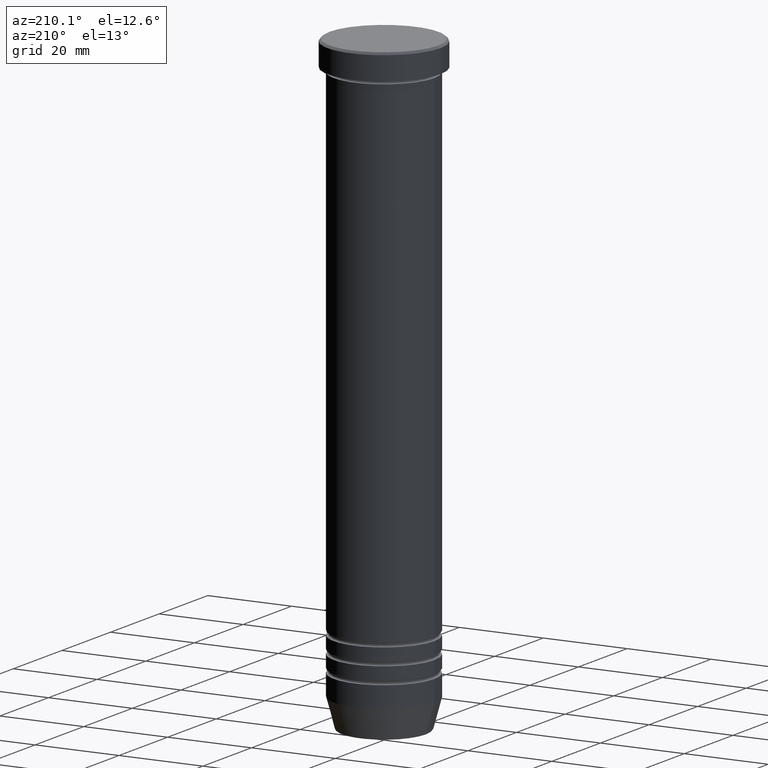
[diagram: clean part render]
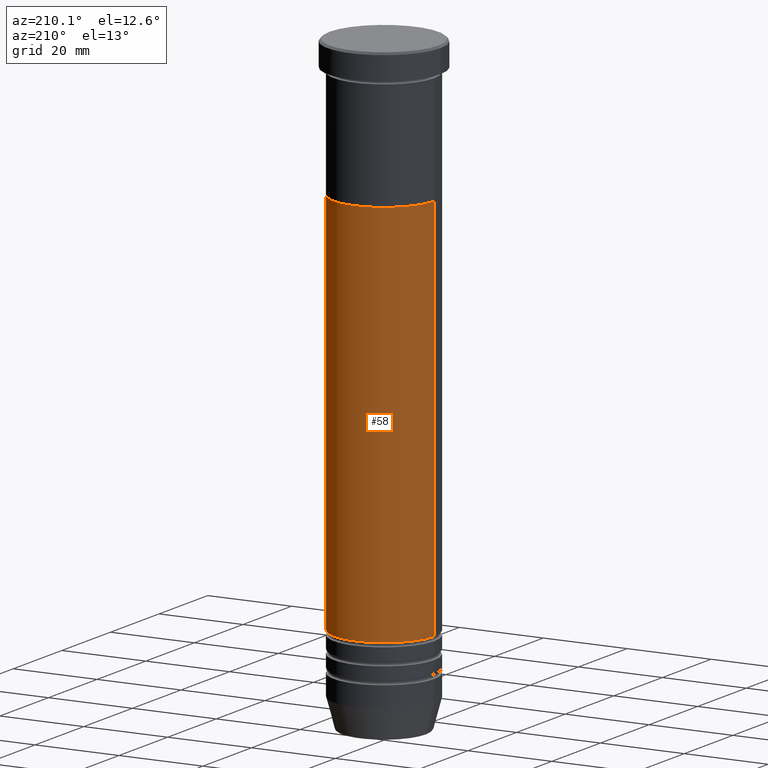
[diagram: same view with one face highlighted and labeled with its STEP entity id]
A machine part, auxiliary view. The second image highlights one B-rep face of the part: STEP entity #58.
In plain terms, the highlighted cylindrical surface (partial cylindrical patch) has radius 12 mm, axis along (-0, -0, 1).
Its self-contained STEP definition (entity closure, byte-faithful):
#5 = CARTESIAN_POINT ( 'NONE',  ( -11.99999999999999467, 1.469576158976823553E-15, -125.0000000000000284 ) ) ;
#57 = CARTESIAN_POINT ( 'NONE',  ( -12.00000000000000178, 1.469576158976824144E-15, -33.00000000000000000 ) ) ;
#58 = ADVANCED_FACE ( 'NONE', ( #116 ), #743, .T. ) ;
#61 = LINE ( 'NONE', #589, #150 ) ;
#97 = CIRCLE ( 'NONE', #752, 12.00000000000000178 ) ;
#116 = FACE_OUTER_BOUND ( 'NONE', #934, .T. ) ;
#150 = VECTOR ( 'NONE', #954, 1000.000000000000000 ) ;
#200 = CARTESIAN_POINT ( 'NONE',  ( 0.000000000000000000, 0.000000000000000000, 0.000000000000000000 ) ) ;
#206 = CIRCLE ( 'NONE', #478, 11.99999999999999467 ) ;
#235 = EDGE_CURVE ( 'NONE', #774, #382, #97, .T. ) ;
#294 = CARTESIAN_POINT ( 'NONE',  ( 0.000000000000000000, 0.000000000000000000, -125.0000000000000284 ) ) ;
#310 = EDGE_CURVE ( 'NONE', #629, #521, #206, .T. ) ;
#314 = DIRECTION ( 'NONE',  ( 1.000000000000000000, 0.000000000000000000, 0.000000000000000000 ) ) ;
#356 = CARTESIAN_POINT ( 'NONE',  ( 12.00000000000000178, 0.000000000000000000, -33.00000000000000000 ) ) ;
#382 = VERTEX_POINT ( 'NONE', #57 ) ;
#453 = EDGE_CURVE ( 'NONE', #521, #382, #61, .T. ) ;
#466 = ORIENTED_EDGE ( 'NONE', *, *, #453, .T. ) ;
#478 = AXIS2_PLACEMENT_3D ( 'NONE', #294, #1114, #927 ) ;
#521 = VERTEX_POINT ( 'NONE', #5 ) ;
#571 = CARTESIAN_POINT ( 'NONE',  ( 11.99999999999999822, 0.000000000000000000, 0.000000000000000000 ) ) ;
#582 = DIRECTION ( 'NONE',  ( -0.000000000000000000, -0.000000000000000000, 1.000000000000000000 ) ) ;
#589 = CARTESIAN_POINT ( 'NONE',  ( -11.99999999999999822, 1.469576158976823750E-15, 0.000000000000000000 ) ) ;
#629 = VERTEX_POINT ( 'NONE', #776 ) ;
#653 = ORIENTED_EDGE ( 'NONE', *, *, #1115, .F. ) ;
#743 = CYLINDRICAL_SURFACE ( 'NONE', #840, 11.99999999999999822 ) ;
#748 = DIRECTION ( 'NONE',  ( 1.000000000000000000, 0.000000000000000000, 0.000000000000000000 ) ) ;
#750 = ORIENTED_EDGE ( 'NONE', *, *, #310, .T. ) ;
#751 = DIRECTION ( 'NONE',  ( -0.000000000000000000, -0.000000000000000000, 1.000000000000000000 ) ) ;
#752 = AXIS2_PLACEMENT_3D ( 'NONE', #1136, #751, #314 ) ;
#774 = VERTEX_POINT ( 'NONE', #356 ) ;
#776 = CARTESIAN_POINT ( 'NONE',  ( 11.99999999999999467, 0.000000000000000000, -125.0000000000000284 ) ) ;
#803 = ORIENTED_EDGE ( 'NONE', *, *, #235, .F. ) ;
#840 = AXIS2_PLACEMENT_3D ( 'NONE', #200, #1082, #748 ) ;
#842 = LINE ( 'NONE', #571, #1043 ) ;
#927 = DIRECTION ( 'NONE',  ( 1.000000000000000000, 0.000000000000000000, 0.000000000000000000 ) ) ;
#934 = EDGE_LOOP ( 'NONE', ( #750, #466, #803, #653 ) ) ;
#954 = DIRECTION ( 'NONE',  ( -0.000000000000000000, -0.000000000000000000, 1.000000000000000000 ) ) ;
#1043 = VECTOR ( 'NONE', #582, 1000.000000000000000 ) ;
#1082 = DIRECTION ( 'NONE',  ( -0.000000000000000000, -0.000000000000000000, 1.000000000000000000 ) ) ;
#1114 = DIRECTION ( 'NONE',  ( -0.000000000000000000, -0.000000000000000000, 1.000000000000000000 ) ) ;
#1115 = EDGE_CURVE ( 'NONE', #629, #774, #842, .T. ) ;
#1136 = CARTESIAN_POINT ( 'NONE',  ( 0.000000000000000000, 0.000000000000000000, -33.00000000000000000 ) ) ;